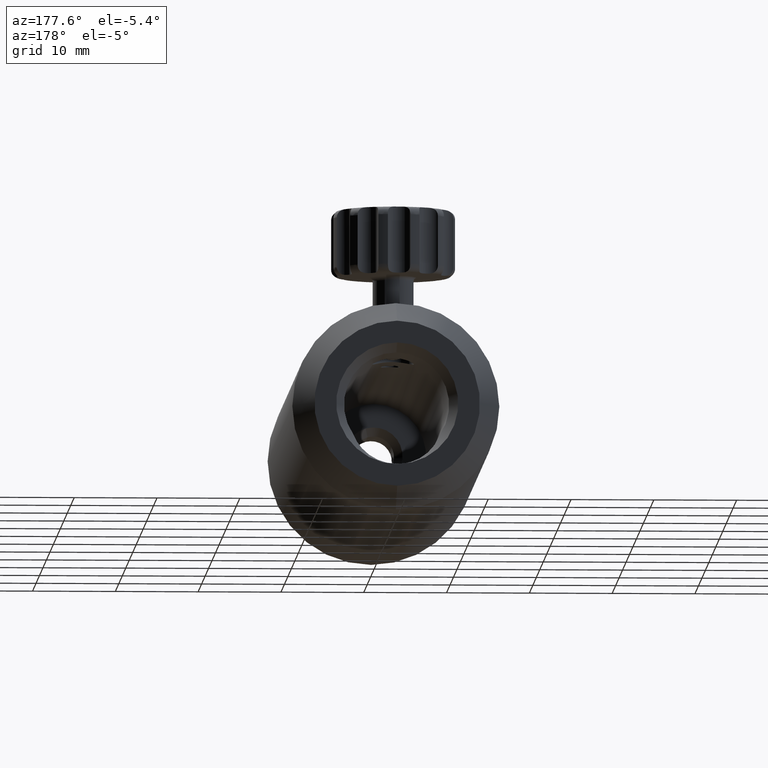
[diagram: clean part render]
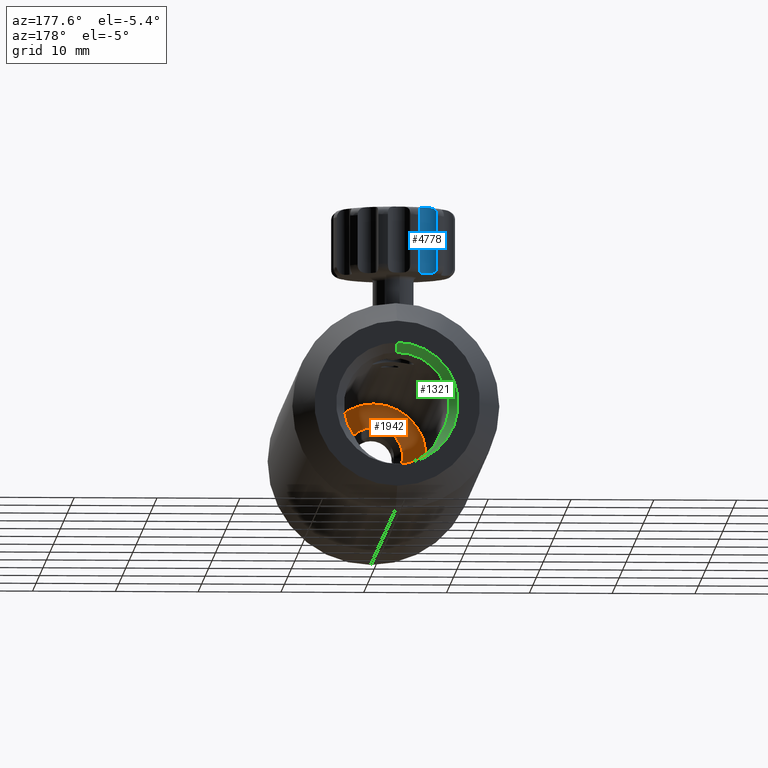
[diagram: same view with three faces highlighted in distinct colors, each labeled with its STEP entity id]
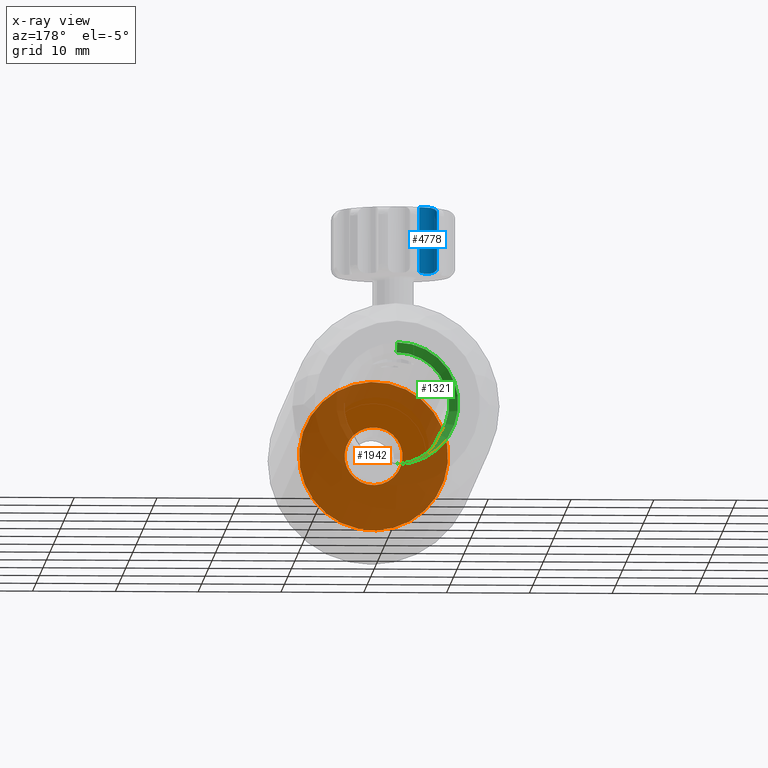
[diagram: x-ray of the same camera — body ghosted, the three highlighted faces saturated]
A machine part, auxiliary view with three faces highlighted in distinct colors.
The next image is the same camera in x-ray (body ghosted, the three faces saturated) — at least one of them is partly hidden behind the body in this view.
Their STEP definitions:

[orange] entity #1942 — the highlighted planar face has unit normal (-0, 1, 0).
#11 = EDGE_LOOP ( 'NONE', ( #2498, #2751 ) ) ;
#116 = AXIS2_PLACEMENT_3D ( 'NONE', #3127, #5166, #2719 ) ;
#244 = CIRCLE ( 'NONE', #3440, 3.499999999999985300 ) ;
#364 = CARTESIAN_POINT ( 'NONE',  ( 2.450934703323347700, -1.728264329007510600, 8.659845211090385000 ) ) ;
#475 = EDGE_CURVE ( 'NONE', #4499, #2112, #244, .T. ) ;
#555 = CIRCLE ( 'NONE', #5066, 8.999999999999989300 ) ;
#825 = CARTESIAN_POINT ( 'NONE',  ( 0.9531412735146258500, -1.728264329007510600, 3.367717582090703500 ) ) ;
#1581 = EDGE_CURVE ( 'NONE', #3321, #1809, #555, .T. ) ;
#1673 = DIRECTION ( 'NONE',  ( 0.2723260781470401800, 0.0000000000000000000, 0.9622050234544882200 ) ) ;
#1718 = FACE_OUTER_BOUND ( 'NONE', #11, .T. ) ;
#1809 = VERTEX_POINT ( 'NONE', #364 ) ;
#1830 = CIRCLE ( 'NONE', #2818, 8.999999999999989300 ) ;
#1942 = ADVANCED_FACE ( 'NONE', ( #3616, #1718 ), #2352, .T. ) ;
#1989 = ORIENTED_EDGE ( 'NONE', *, *, #5056, .T. ) ;
#2014 = DIRECTION ( 'NONE',  ( -7.743483043472672600E-018, 1.000000000000000000, 4.127411765784181600E-018 ) ) ;
#2031 = DIRECTION ( 'NONE',  ( 7.743483043472672600E-018, -1.000000000000000000, -4.127411765784181600E-018 ) ) ;
#2112 = VERTEX_POINT ( 'NONE', #825 ) ;
#2231 = CARTESIAN_POINT ( 'NONE',  ( -2.450934703323371300, -1.728264329007510600, -8.659845211090381400 ) ) ;
#2319 = DIRECTION ( 'NONE',  ( 0.2723260781470401800, 0.0000000000000000000, 0.9622050234544881100 ) ) ;
#2352 = PLANE ( 'NONE',  #116 ) ;
#2430 = CARTESIAN_POINT ( 'NONE',  ( -1.256286741302403700E-014, -1.728264329007510600, 2.531523026912996800E-015 ) ) ;
#2498 = ORIENTED_EDGE ( 'NONE', *, *, #1581, .T. ) ;
#2719 = DIRECTION ( 'NONE',  ( 0.2723260781470402400, 1.257574922105320800E-018, 0.9622050234544882200 ) ) ;
#2751 = ORIENTED_EDGE ( 'NONE', *, *, #2934, .T. ) ;
#2818 = AXIS2_PLACEMENT_3D ( 'NONE', #4766, #3946, #2319 ) ;
#2934 = EDGE_CURVE ( 'NONE', #1809, #3321, #1830, .T. ) ;
#3127 = CARTESIAN_POINT ( 'NONE',  ( -1.256286741302403700E-014, -1.728264329007510600, 2.531523026912996800E-015 ) ) ;
#3247 = CARTESIAN_POINT ( 'NONE',  ( -1.256286741302403700E-014, -1.728264329007510600, 2.531523026912996800E-015 ) ) ;
#3256 = CARTESIAN_POINT ( 'NONE',  ( -1.256286741302403700E-014, -1.728264329007510600, 2.531523026912996800E-015 ) ) ;
#3291 = DIRECTION ( 'NONE',  ( 7.743483043472672600E-018, -1.000000000000000000, -4.127411765784181600E-018 ) ) ;
#3321 = VERTEX_POINT ( 'NONE', #2231 ) ;
#3440 = AXIS2_PLACEMENT_3D ( 'NONE', #2430, #2031, #4880 ) ;
#3616 = FACE_BOUND ( 'NONE', #3984, .T. ) ;
#3646 = DIRECTION ( 'NONE',  ( 0.2723260781470401800, 0.0000000000000000000, 0.9622050234544881100 ) ) ;
#3738 = ORIENTED_EDGE ( 'NONE', *, *, #475, .T. ) ;
#3946 = DIRECTION ( 'NONE',  ( -7.743483043472672600E-018, 1.000000000000000000, 4.127411765784181600E-018 ) ) ;
#3984 = EDGE_LOOP ( 'NONE', ( #1989, #3738 ) ) ;
#4054 = CIRCLE ( 'NONE', #4262, 3.499999999999985300 ) ;
#4262 = AXIS2_PLACEMENT_3D ( 'NONE', #3256, #3291, #1673 ) ;
#4459 = CARTESIAN_POINT ( 'NONE',  ( -0.9531412735146508300, -1.728264329007510600, -3.367717582090698200 ) ) ;
#4499 = VERTEX_POINT ( 'NONE', #4459 ) ;
#4766 = CARTESIAN_POINT ( 'NONE',  ( -1.256286741302403700E-014, -1.728264329007510600, 2.531523026912996800E-015 ) ) ;
#4880 = DIRECTION ( 'NONE',  ( 0.2723260781470401800, 0.0000000000000000000, 0.9622050234544882200 ) ) ;
#5056 = EDGE_CURVE ( 'NONE', #2112, #4499, #4054, .T. ) ;
#5066 = AXIS2_PLACEMENT_3D ( 'NONE', #3247, #2014, #3646 ) ;
#5166 = DIRECTION ( 'NONE',  ( -8.593205462881816700E-018, 1.000000000000000000, 1.125102232813494700E-018 ) ) ;

[blue] entity #4778 — the highlighted cylindrical surface (edge-blend (fillet) strip) has radius 1.5 mm, axis along (-0, 0, -1).
#154 = ORIENTED_EDGE ( 'NONE', *, *, #2869, .F. ) ;
#157 = CARTESIAN_POINT ( 'NONE',  ( -4.896283305326242900, 59.74450651418990800, 16.62820717617403000 ) ) ;
#180 = CARTESIAN_POINT ( 'NONE',  ( -5.066171276253369300, 59.81812778153439300, 23.85097815048716900 ) ) ;
#204 = CARTESIAN_POINT ( 'NONE',  ( -3.412266527492455300, 60.00720758394037800, 16.35000000000000500 ) ) ;
#261 = CARTESIAN_POINT ( 'NONE',  ( -2.903871500135989200, 60.95733194407959100, 16.54970248494196000 ) ) ;
#266 = B_SPLINE_CURVE_WITH_KNOTS ( 'NONE', 3,
 ( #1822, #3829, #966, #157, #3040, #1416, #602, #2182, #5063, #4271, #3817, #1774 ),
 .UNSPECIFIED., .F., .F.,
 ( 4, 2, 2, 2, 2, 4 ),
 ( 0.0005250588141465283100, 0.0007407655339993662100, 0.0009564722538522041100, 0.001387885693557874300, 0.001819299133263544400, 0.002250712572969214800 ),
 .UNSPECIFIED. ) ;
#288 = CARTESIAN_POINT ( 'NONE',  ( -3.412221771670474800, 60.00723698314304500, 24.35000000000000500 ) ) ;
#314 = CARTESIAN_POINT ( 'NONE',  ( -2.898258040763425300, 61.32901353222666100, 23.72670695584173500 ) ) ;
#318 = CARTESIAN_POINT ( 'NONE',  ( -3.568658716623055200, 59.90447668858848100, 16.35000000000000500 ) ) ;
#319 = ORIENTED_EDGE ( 'NONE', *, *, #5017, .F. ) ;
#373 = B_SPLINE_CURVE_WITH_KNOTS ( 'NONE', 3,
 ( #3894, #204, #1423, #2243, #1912, #596, #261, #5093, #1852, #1066, #4334, #5125 ),
 .UNSPECIFIED., .F., .F.,
 ( 4, 2, 2, 2, 2, 4 ),
 ( 0.002250712572969214800, 0.002813180442059665500, 0.003375648311150116300, 0.003656882245695339700, 0.003938116180240563100, 0.004500584049331001300 ),
 .UNSPECIFIED. ) ;
#521 = VERTEX_POINT ( 'NONE', #2084 ) ;
#541 = ORIENTED_EDGE ( 'NONE', *, *, #1715, .F. ) ;
#596 = CARTESIAN_POINT ( 'NONE',  ( -2.916158199773706300, 60.87704376235895900, 16.50331299577249700 ) ) ;
#602 = CARTESIAN_POINT ( 'NONE',  ( -4.525136964084326900, 59.65739010054808500, 16.42080258978729300 ) ) ;
#657 = B_SPLINE_CURVE_WITH_KNOTS ( 'NONE', 3,
 ( #5170, #1466, #4376, #3518, #4727, #4318, #2285, #3115, #680, #5189 ),
 .UNSPECIFIED., .F., .F.,
 ( 4, 2, 2, 2, 4 ),
 ( 0.002250712572969213100, 0.002682648967585655400, 0.003114585362202099100, 0.003546521756818542300, 0.003978458151434985900 ),
 .UNSPECIFIED. ) ;
#680 = CARTESIAN_POINT ( 'NONE',  ( -4.998129852280379200, 59.78390667361729500, 23.97474087595735500 ) ) ;
#701 = VERTEX_POINT ( 'NONE', #180 ) ;
#702 = CARTESIAN_POINT ( 'NONE',  ( -2.916087084127835000, 60.87776591137116400, 24.19620838891366800 ) ) ;
#762 = CARTESIAN_POINT ( 'NONE',  ( -2.909358779354462900, 61.38445087509229800, 20.35000000000000500 ) ) ;
#966 = CARTESIAN_POINT ( 'NONE',  ( -4.991026903703190200, 59.78196104167383100, 16.72994138453881500 ) ) ;
#1052 = CARTESIAN_POINT ( 'NONE',  ( -2.909358779354461500, 61.38445087509229800, 17.35000000000001200 ) ) ;
#1066 = CARTESIAN_POINT ( 'NONE',  ( -2.898107462251844800, 61.32807808030801800, 16.97088624468522200 ) ) ;
#1091 = CARTESIAN_POINT ( 'NONE',  ( -2.891336570939470300, 61.17162524464469400, 23.96081791756818500 ) ) ;
#1140 = CARTESIAN_POINT ( 'NONE',  ( -5.066171276244520300, 59.81812778152994500, 16.84902184949674000 ) ) ;
#1308 = VERTEX_POINT ( 'NONE', #1140 ) ;
#1357 = VERTEX_POINT ( 'NONE', #4919 ) ;
#1416 = CARTESIAN_POINT ( 'NONE',  ( -4.663383126484221800, 59.67771161882606600, 16.46806178939325000 ) ) ;
#1423 = CARTESIAN_POINT ( 'NONE',  ( -3.273977338411092400, 60.14116861099935800, 16.34754897489195400 ) ) ;
#1466 = CARTESIAN_POINT ( 'NONE',  ( -3.688757093848551900, 59.82558647104454500, 24.35000000000000500 ) ) ;
#1480 = B_SPLINE_CURVE_WITH_KNOTS ( 'NONE', 3,
 ( #2763, #2704, #314, #1091, #1561, #1955, #702, #4005, #2729, #2342, #288, #3153 ),
 .UNSPECIFIED., .F., .F.,
 ( 4, 2, 2, 2, 2, 4 ),
 ( 1.972355051080222800E-007, 0.0005628260698711296000, 0.0008441404870541362300, 0.001125454904237142800, 0.001688083738603177900, 0.002250712572969213100 ),
 .UNSPECIFIED. ) ;
#1561 = CARTESIAN_POINT ( 'NONE',  ( -2.891296443802958000, 61.10645416006208600, 24.03119459307460600 ) ) ;
#1715 = EDGE_CURVE ( 'NONE', #1357, #701, #657, .T. ) ;
#1774 = CARTESIAN_POINT ( 'NONE',  ( -3.568658716623055200, 59.90447668858848100, 16.35000000000000500 ) ) ;
#1822 = CARTESIAN_POINT ( 'NONE',  ( -5.066171276244520300, 59.81812778152994500, 16.84902184949674000 ) ) ;
#1852 = CARTESIAN_POINT ( 'NONE',  ( -2.891310018649112700, 61.16974934705535800, 16.73691078494118400 ) ) ;
#1882 = CARTESIAN_POINT ( 'NONE',  ( -5.066171276253371000, 59.81812778153439300, 24.35000000000000500 ) ) ;
#1912 = CARTESIAN_POINT ( 'NONE',  ( -2.980569265189201700, 60.62132621721325200, 16.39446242113342900 ) ) ;
#1955 = CARTESIAN_POINT ( 'NONE',  ( -2.903492874869188600, 60.96035120727123100, 24.14828812739180100 ) ) ;
#2077 = AXIS2_PLACEMENT_3D ( 'NONE', #2185, #4235, #5022 ) ;
#2084 = CARTESIAN_POINT ( 'NONE',  ( -2.909358779354463700, 61.38445087509229800, 23.34999999999999400 ) ) ;
#2143 = ORIENTED_EDGE ( 'NONE', *, *, #4989, .F. ) ;
#2182 = CARTESIAN_POINT ( 'NONE',  ( -4.241859046752483500, 59.65903263737776300, 16.36561269092383600 ) ) ;
#2185 = CARTESIAN_POINT ( 'NONE',  ( -4.392195343536063700, 61.15818615418755400, 24.35000000000000500 ) ) ;
#2243 = CARTESIAN_POINT ( 'NONE',  ( -3.059090750035265800, 60.44574785305173500, 16.36868933162014600 ) ) ;
#2285 = CARTESIAN_POINT ( 'NONE',  ( -4.664837515119057100, 59.67813916453682300, 24.23091170451432700 ) ) ;
#2342 = CARTESIAN_POINT ( 'NONE',  ( -3.274118812373858900, 60.14083211685125700, 24.35250569970266500 ) ) ;
#2495 = EDGE_LOOP ( 'NONE', ( #2143, #541, #4292, #319, #4540, #154 ) ) ;
#2704 = CARTESIAN_POINT ( 'NONE',  ( -2.909358779354463300, 61.38445087509229100, 23.54016829415997600 ) ) ;
#2729 = CARTESIAN_POINT ( 'NONE',  ( -3.058224741455386900, 60.44711175610763100, 24.33118457777058200 ) ) ;
#2763 = CARTESIAN_POINT ( 'NONE',  ( -2.909358779354463700, 61.38445087509229800, 23.34999999999999400 ) ) ;
#2770 = LINE ( 'NONE', #762, #5014 ) ;
#2869 = EDGE_CURVE ( 'NONE', #1308, #4993, #266, .T. ) ;
#2902 = LINE ( 'NONE', #1882, #4378 ) ;
#2960 = CYLINDRICAL_SURFACE ( 'NONE', #2077, 1.500000000000002900 ) ;
#3040 = CARTESIAN_POINT ( 'NONE',  ( -4.842794203089576800, 59.72612554665810300, 16.58360422067514200 ) ) ;
#3115 = CARTESIAN_POINT ( 'NONE',  ( -4.900340468927517200, 59.74161939725704700, 24.07942499957178500 ) ) ;
#3153 = CARTESIAN_POINT ( 'NONE',  ( -3.568658716623058800, 59.90447668858846700, 24.35000000000000500 ) ) ;
#3518 = CARTESIAN_POINT ( 'NONE',  ( -4.096990080273577900, 59.68052987643670100, 24.34333142757216400 ) ) ;
#3817 = CARTESIAN_POINT ( 'NONE',  ( -3.688611688096840700, 59.82568198516926800, 16.35000000000000100 ) ) ;
#3829 = CARTESIAN_POINT ( 'NONE',  ( -5.032495296230589300, 59.80119060886428200, 16.78776753079160100 ) ) ;
#3894 = CARTESIAN_POINT ( 'NONE',  ( -3.568658716623055200, 59.90447668858848100, 16.35000000000000500 ) ) ;
#4005 = CARTESIAN_POINT ( 'NONE',  ( -2.979368403864119100, 60.62522793552983600, 24.30421380910947700 ) ) ;
#4202 = EDGE_CURVE ( 'NONE', #521, #1357, #1480, .T. ) ;
#4235 = DIRECTION ( 'NONE',  ( -7.216449660063533300E-016, 1.486441178477628800E-016, -1.000000000000000000 ) ) ;
#4271 = CARTESIAN_POINT ( 'NONE',  ( -3.821833325022215600, 59.76346131460486800, 16.34910439956472000 ) ) ;
#4292 = ORIENTED_EDGE ( 'NONE', *, *, #4202, .F. ) ;
#4318 = CARTESIAN_POINT ( 'NONE',  ( -4.525373715776690500, 59.65738429459062100, 24.27915560887108300 ) ) ;
#4334 = CARTESIAN_POINT ( 'NONE',  ( -2.909358779354702200, 61.38445087509384000, 17.15959867956037900 ) ) ;
#4340 = EDGE_CURVE ( 'NONE', #4993, #5190, #373, .T. ) ;
#4376 = CARTESIAN_POINT ( 'NONE',  ( -3.822042683400376900, 59.76335994036215700, 24.35089936988884300 ) ) ;
#4378 = VECTOR ( 'NONE', #4749, 1000.000000000000000 ) ;
#4518 = DIRECTION ( 'NONE',  ( 7.216449660063533300E-016, -1.486441178477628800E-016, 1.000000000000000000 ) ) ;
#4540 = ORIENTED_EDGE ( 'NONE', *, *, #4340, .F. ) ;
#4727 = CARTESIAN_POINT ( 'NONE',  ( -4.241528574197386300, 59.65903898822307400, 24.33444736824907700 ) ) ;
#4749 = DIRECTION ( 'NONE',  ( -7.216449660063533300E-016, 1.486441178477628800E-016, -1.000000000000000000 ) ) ;
#4778 = ADVANCED_FACE ( 'NONE', ( #5200 ), #2960, .F. ) ;
#4919 = CARTESIAN_POINT ( 'NONE',  ( -3.568658716623058800, 59.90447668858846700, 24.35000000000000500 ) ) ;
#4989 = EDGE_CURVE ( 'NONE', #701, #1308, #2902, .T. ) ;
#4993 = VERTEX_POINT ( 'NONE', #318 ) ;
#5014 = VECTOR ( 'NONE', #4518, 1000.000000000000000 ) ;
#5017 = EDGE_CURVE ( 'NONE', #5190, #521, #2770, .T. ) ;
#5022 = DIRECTION ( 'NONE',  ( -0.4493172884782039600, -0.8933722484354406100, 0.0000000000000000000 ) ) ;
#5063 = CARTESIAN_POINT ( 'NONE',  ( -4.096465913440220600, 59.68064958459365200, 16.35664463808420900 ) ) ;
#5093 = CARTESIAN_POINT ( 'NONE',  ( -2.891341306537093200, 61.10445128492039400, 16.66680361988899900 ) ) ;
#5125 = CARTESIAN_POINT ( 'NONE',  ( -2.909358779354461500, 61.38445087509229800, 17.35000000000001200 ) ) ;
#5170 = CARTESIAN_POINT ( 'NONE',  ( -3.568658716623058800, 59.90447668858846700, 24.35000000000000500 ) ) ;
#5189 = CARTESIAN_POINT ( 'NONE',  ( -5.066171276253369300, 59.81812778153439300, 23.85097815048716900 ) ) ;
#5190 = VERTEX_POINT ( 'NONE', #1052 ) ;
#5200 = FACE_OUTER_BOUND ( 'NONE', #2495, .T. ) ;

[green] entity #1321 — the highlighted conical surface has half-angle 27 deg.
#25 = DIRECTION ( 'NONE',  ( -3.993683801075498600E-016, 0.8910065241883675700, -0.4539904997395473000 ) ) ;
#101 = EDGE_CURVE ( 'NONE', #2600, #3100, #1120, .T. ) ;
#114 = CARTESIAN_POINT ( 'NONE',  ( -6.463717091226673800E-015, 66.47173567099247300, -7.369050898988852800 ) ) ;
#118 = VECTOR ( 'NONE', #25, 1000.000000000000200 ) ;
#158 = LINE ( 'NONE', #1029, #1767 ) ;
#170 = CARTESIAN_POINT ( 'NONE',  ( -4.120569214640079600, 65.49182950852218700, -5.503600442521885400 ) ) ;
#252 = CARTESIAN_POINT ( 'NONE',  ( 6.852540497365953800E-015, 64.47173567099247300, 6.350000000000000500 ) ) ;
#384 = LINE ( 'NONE', #2467, #118 ) ;
#445 = EDGE_CURVE ( 'NONE', #3100, #4690, #384, .T. ) ;
#597 = DIRECTION ( 'NONE',  ( 4.522890890469847000E-016, 0.8910065241883675700, 0.4539904997395473000 ) ) ;
#603 = CIRCLE ( 'NONE', #2008, 6.349999999999991700 ) ;
#1012 = CARTESIAN_POINT ( 'NONE',  ( -0.2976514074173016700, 66.43434617649765500, -7.350000000000019200 ) ) ;
#1015 = ORIENTED_EDGE ( 'NONE', *, *, #3580, .F. ) ;
#1029 = CARTESIAN_POINT ( 'NONE',  ( 6.344924585732769500E-015, 64.47173567099247300, 6.349999999999991700 ) ) ;
#1120 = B_SPLINE_CURVE_WITH_KNOTS ( 'NONE', 3,
 ( #2588, #2965, #4647, #1355, #170, #2620, #3032, #3433, #4190, #4212, #1749, #5006, #1766, #4612, #1012, #1910 ),
 .UNSPECIFIED., .F., .F.,
 ( 4, 2, 2, 2, 2, 2, 2, 4 ),
 ( 4.146292212915003300E-007, 0.001781182817859549900, 0.002671566912178679600, 0.003561951006497808600, 0.004452335100816937200, 0.005342719195136067100, 0.006233103289455196200, 0.007123487383774325200 ),
 .UNSPECIFIED. ) ;
#1185 = AXIS2_PLACEMENT_3D ( 'NONE', #2918, #4208, #2154 ) ;
#1223 = CARTESIAN_POINT ( 'NONE',  ( -5.198049867510712300, 64.47173567099247300, -3.647297297297291700 ) ) ;
#1321 = ADVANCED_FACE ( 'NONE', ( #2792 ), #3290, .F. ) ;
#1355 = CARTESIAN_POINT ( 'NONE',  ( -4.301535100733245200, 65.37765670659442200, -5.288258953580924300 ) ) ;
#1510 = EDGE_LOOP ( 'NONE', ( #3717, #3007, #5164, #1015, #5173 ) ) ;
#1623 = CARTESIAN_POINT ( 'NONE',  ( 0.0000000000000000000, 64.47173567099247300, 0.0000000000000000000 ) ) ;
#1749 = CARTESIAN_POINT ( 'NONE',  ( -2.032540197037567200, 66.24499666924863600, -6.969056832329406400 ) ) ;
#1766 = CARTESIAN_POINT ( 'NONE',  ( -1.189803944341298200, 66.37406344441969000, -7.228181748485490700 ) ) ;
#1767 = VECTOR ( 'NONE', #597, 1000.000000000000200 ) ;
#1907 = DIRECTION ( 'NONE',  ( -1.502285461903961200E-018, 1.000000000000000000, 4.971860657915503100E-018 ) ) ;
#1910 = CARTESIAN_POINT ( 'NONE',  ( -6.444311795266943900E-015, 66.43434617649765500, -7.350000000000018300 ) ) ;
#2008 = AXIS2_PLACEMENT_3D ( 'NONE', #3879, #3069, #3086 ) ;
#2154 = DIRECTION ( 'NONE',  ( -9.992007221626418700E-016, 0.0000000000000000000, -1.000000000000000000 ) ) ;
#2467 = CARTESIAN_POINT ( 'NONE',  ( -5.567273868274201400E-015, 64.47173567099247300, -6.349999999999991700 ) ) ;
#2588 = CARTESIAN_POINT ( 'NONE',  ( -5.198049867510712300, 64.47173567099247300, -3.647297297297291700 ) ) ;
#2600 = VERTEX_POINT ( 'NONE', #1223 ) ;
#2620 = CARTESIAN_POINT ( 'NONE',  ( -3.729573374390329200, 65.70073953937584600, -5.901934018623010500 ) ) ;
#2792 = FACE_OUTER_BOUND ( 'NONE', #1510, .T. ) ;
#2918 = CARTESIAN_POINT ( 'NONE',  ( 0.0000000000000000000, 66.47173567099247300, 0.0000000000000000000 ) ) ;
#2965 = CARTESIAN_POINT ( 'NONE',  ( -5.024910953875015600, 64.75805280018764200, -4.148040668156546000 ) ) ;
#3007 = ORIENTED_EDGE ( 'NONE', *, *, #445, .T. ) ;
#3032 = CARTESIAN_POINT ( 'NONE',  ( -3.518615612864490800, 65.79644697611105600, -6.086700561289947400 ) ) ;
#3069 = DIRECTION ( 'NONE',  ( 1.502285461903961200E-018, -1.000000000000000000, -4.971860657915503100E-018 ) ) ;
#3086 = DIRECTION ( 'NONE',  ( -9.992007221626422700E-016, 0.0000000000000000000, -1.000000000000000000 ) ) ;
#3100 = VERTEX_POINT ( 'NONE', #3891 ) ;
#3290 = CONICAL_SURFACE ( 'NONE', #3801, 6.349999999999991700, 0.4712388980384700800 ) ;
#3433 = CARTESIAN_POINT ( 'NONE',  ( -3.064607960093037200, 65.97063812755992300, -6.425856808081158000 ) ) ;
#3505 = EDGE_CURVE ( 'NONE', #4102, #2600, #603, .T. ) ;
#3580 = EDGE_CURVE ( 'NONE', #4102, #3647, #158, .T. ) ;
#3647 = VERTEX_POINT ( 'NONE', #4441 ) ;
#3717 = ORIENTED_EDGE ( 'NONE', *, *, #101, .T. ) ;
#3801 = AXIS2_PLACEMENT_3D ( 'NONE', #1623, #1907, #5160 ) ;
#3879 = CARTESIAN_POINT ( 'NONE',  ( 0.0000000000000000000, 64.47173567099247300, 0.0000000000000000000 ) ) ;
#3891 = CARTESIAN_POINT ( 'NONE',  ( -6.444311795266943900E-015, 66.43434617649765500, -7.350000000000018300 ) ) ;
#3966 = EDGE_CURVE ( 'NONE', #3647, #4690, #5139, .T. ) ;
#4102 = VERTEX_POINT ( 'NONE', #252 ) ;
#4190 = CARTESIAN_POINT ( 'NONE',  ( -2.820387895621081500, 66.04944861895469900, -6.580901165178077300 ) ) ;
#4208 = DIRECTION ( 'NONE',  ( 1.502285461903961200E-018, -1.000000000000000000, -4.971860657915503100E-018 ) ) ;
#4212 = CARTESIAN_POINT ( 'NONE',  ( -2.301285439446899800, 66.18738184296010700, -6.854008297618910300 ) ) ;
#4441 = CARTESIAN_POINT ( 'NONE',  ( 7.360156408999120000E-015, 66.47173567099247300, 7.369050898988852800 ) ) ;
#4612 = CARTESIAN_POINT ( 'NONE',  ( -0.5962139497182060700, 66.42243473507601000, -7.325856213586509300 ) ) ;
#4647 = CARTESIAN_POINT ( 'NONE',  ( -4.781443012161836300, 65.01962102713400800, -4.622565263492743900 ) ) ;
#4690 = VERTEX_POINT ( 'NONE', #114 ) ;
#5006 = CARTESIAN_POINT ( 'NONE',  ( -1.476794917989204800, 66.33833332474804900, -7.156132233123592800 ) ) ;
#5139 = CIRCLE ( 'NONE', #1185, 7.369050898988852800 ) ;
#5160 = DIRECTION ( 'NONE',  ( 9.992007221626422700E-016, 0.0000000000000000000, 1.000000000000000000 ) ) ;
#5164 = ORIENTED_EDGE ( 'NONE', *, *, #3966, .F. ) ;
#5173 = ORIENTED_EDGE ( 'NONE', *, *, #3505, .T. ) ;